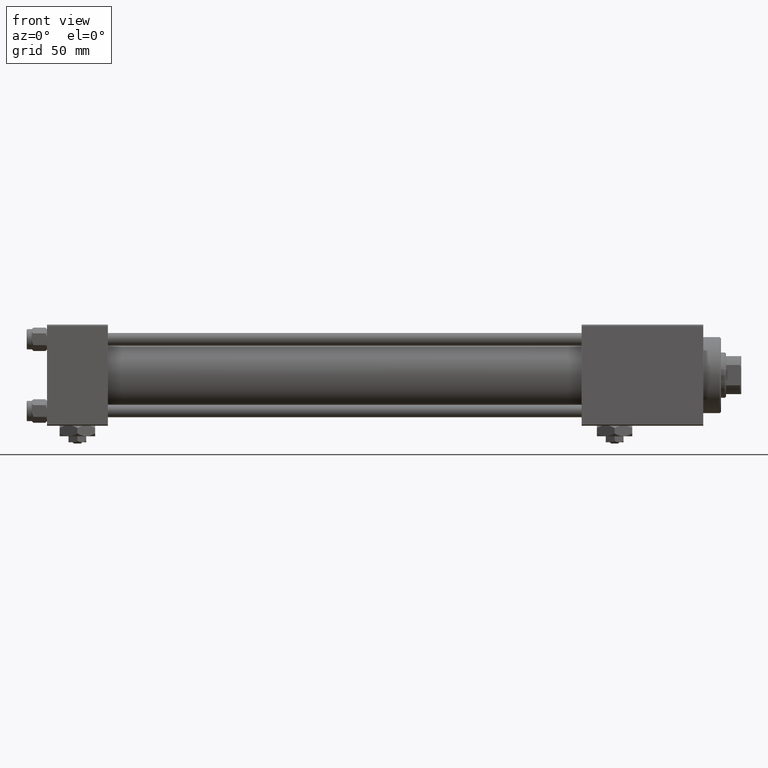
[diagram: clean part render]
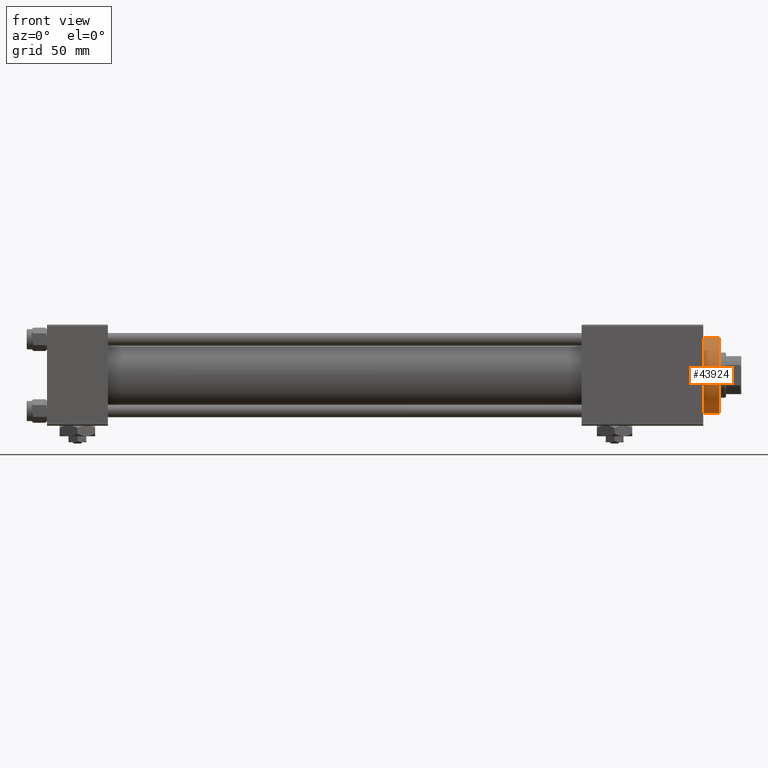
[diagram: same view with one face highlighted and labeled with its STEP entity id]
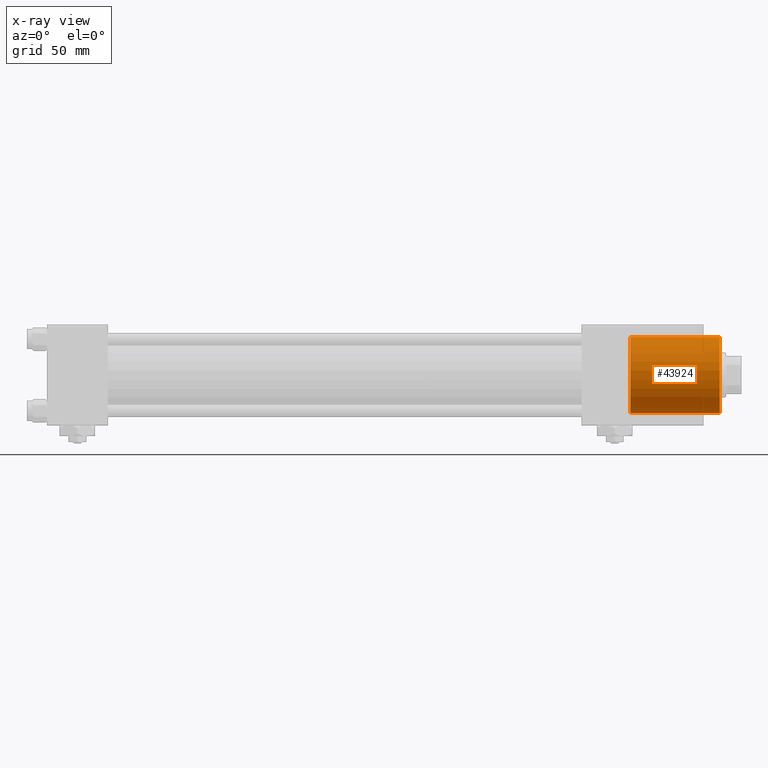
[diagram: x-ray of the same camera — body ghosted, the highlighted face saturated]
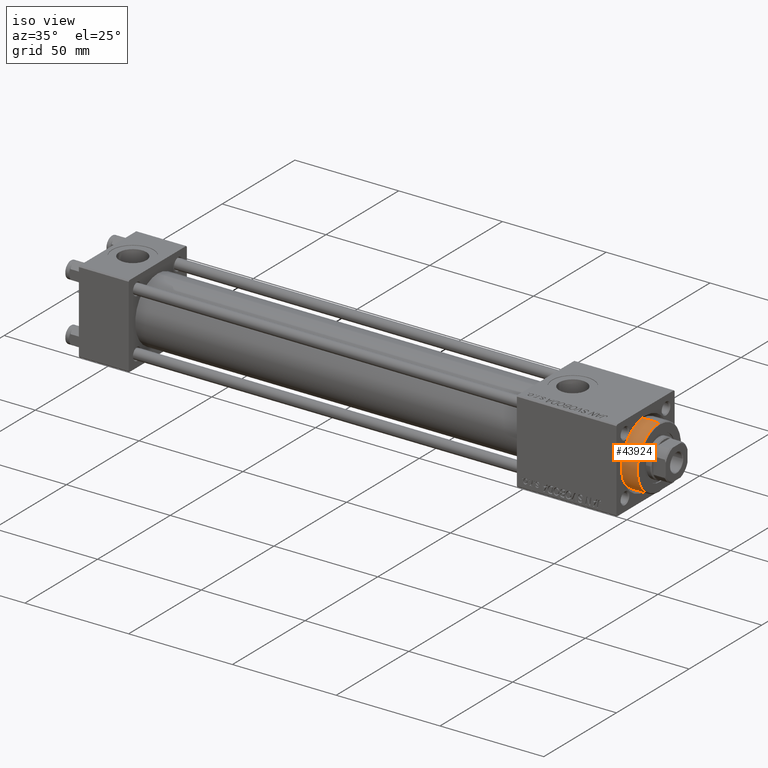
[diagram: same view with one face highlighted and labeled with its STEP entity id]
A machine part, front view. The second image highlights one B-rep face of the part: STEP entity #43924.
The next image is the same camera in x-ray: the body ghosted, the highlighted face saturated — about 0% of this face is hidden behind the body in this view.
A second angle (iso view) of the same face is appended — the face is thin or edge-on in the first view.
In plain terms, the highlighted cylindrical surface (partial cylindrical patch) has radius 15 mm, axis along (-1, -0, -0).
Its self-contained STEP definition (entity closure, byte-faithful):
#1427 = CYLINDRICAL_SURFACE ( 'NONE', #5664, 15.00000000000000000 ) ;
#1442 = AXIS2_PLACEMENT_3D ( 'NONE', #33459, #37414, #5820 ) ;
#1698 = FACE_OUTER_BOUND ( 'NONE', #15071, .T. ) ;
#5002 = DIRECTION ( 'NONE',  ( -0.000000000000000000, -0.000000000000000000, -1.000000000000000000 ) ) ;
#5664 = AXIS2_PLACEMENT_3D ( 'NONE', #17766, #33557, #10396 ) ;
#5820 = DIRECTION ( 'NONE',  ( 1.000000000000000000, 0.000000000000000000, 0.000000000000000000 ) ) ;
#5830 = ORIENTED_EDGE ( 'NONE', *, *, #12142, .T. ) ;
#6163 = CARTESIAN_POINT ( 'NONE',  ( 0.000000000000000000, 0.000000000000000000, 35.19999999999999574 ) ) ;
#6713 = CARTESIAN_POINT ( 'NONE',  ( -15.00000000000000000, 0.000000000000000000, 35.19999999999999574 ) ) ;
#7108 = ORIENTED_EDGE ( 'NONE', *, *, #11232, .F. ) ;
#7986 = VERTEX_POINT ( 'NONE', #6713 ) ;
#10258 = ORIENTED_EDGE ( 'NONE', *, *, #43026, .T. ) ;
#10396 = DIRECTION ( 'NONE',  ( -1.000000000000000000, 0.000000000000000000, 0.000000000000000000 ) ) ;
#11232 = EDGE_CURVE ( 'NONE', #40513, #26024, #21069, .T. ) ;
#12142 = EDGE_CURVE ( 'NONE', #7986, #43486, #41884, .T. ) ;
#13977 = CARTESIAN_POINT ( 'NONE',  ( -15.00000000000000000, 0.000000000000000000, 28.69999999999999929 ) ) ;
#14173 = EDGE_CURVE ( 'NONE', #40513, #7986, #36063, .T. ) ;
#15071 = EDGE_LOOP ( 'NONE', ( #7108, #48163, #5830, #10258 ) ) ;
#16513 = CARTESIAN_POINT ( 'NONE',  ( -15.00000000000000000, 0.000000000000000000, 0.000000000000000000 ) ) ;
#17766 = CARTESIAN_POINT ( 'NONE',  ( 0.000000000000000000, 0.000000000000000000, 28.69999999999999929 ) ) ;
#21069 = LINE ( 'NONE', #41346, #38653 ) ;
#23231 = DIRECTION ( 'NONE',  ( 0.000000000000000000, 0.000000000000000000, -1.000000000000000000 ) ) ;
#23745 = DIRECTION ( 'NONE',  ( 1.000000000000000000, 0.000000000000000000, 0.000000000000000000 ) ) ;
#25154 = AXIS2_PLACEMENT_3D ( 'NONE', #6163, #23231, #23745 ) ;
#26024 = VERTEX_POINT ( 'NONE', #46469 ) ;
#30009 = DIRECTION ( 'NONE',  ( -0.000000000000000000, -0.000000000000000000, -1.000000000000000000 ) ) ;
#33459 = CARTESIAN_POINT ( 'NONE',  ( 0.000000000000000000, 0.000000000000000000, 0.000000000000000000 ) ) ;
#33557 = DIRECTION ( 'NONE',  ( -0.000000000000000000, -0.000000000000000000, -1.000000000000000000 ) ) ;
#36063 = CIRCLE ( 'NONE', #25154, 15.00000000000000000 ) ;
#37414 = DIRECTION ( 'NONE',  ( 0.000000000000000000, 0.000000000000000000, 1.000000000000000000 ) ) ;
#38653 = VECTOR ( 'NONE', #5002, 1000.000000000000000 ) ;
#40033 = CARTESIAN_POINT ( 'NONE',  ( 15.00000000000000000, 1.836970198721029589E-15, 35.19999999999999574 ) ) ;
#40513 = VERTEX_POINT ( 'NONE', #40033 ) ;
#41346 = CARTESIAN_POINT ( 'NONE',  ( 15.00000000000000000, 1.836970198721029589E-15, 28.69999999999999929 ) ) ;
#41884 = LINE ( 'NONE', #13977, #49505 ) ;
#43026 = EDGE_CURVE ( 'NONE', #43486, #26024, #50194, .T. ) ;
#43486 = VERTEX_POINT ( 'NONE', #16513 ) ;
#43924 = ADVANCED_FACE ( 'NONE', ( #1698 ), #1427, .T. ) ;
#46469 = CARTESIAN_POINT ( 'NONE',  ( 15.00000000000000000, 1.836970198721029589E-15, 0.000000000000000000 ) ) ;
#48163 = ORIENTED_EDGE ( 'NONE', *, *, #14173, .T. ) ;
#49505 = VECTOR ( 'NONE', #30009, 1000.000000000000000 ) ;
#50194 = CIRCLE ( 'NONE', #1442, 15.00000000000000000 ) ;